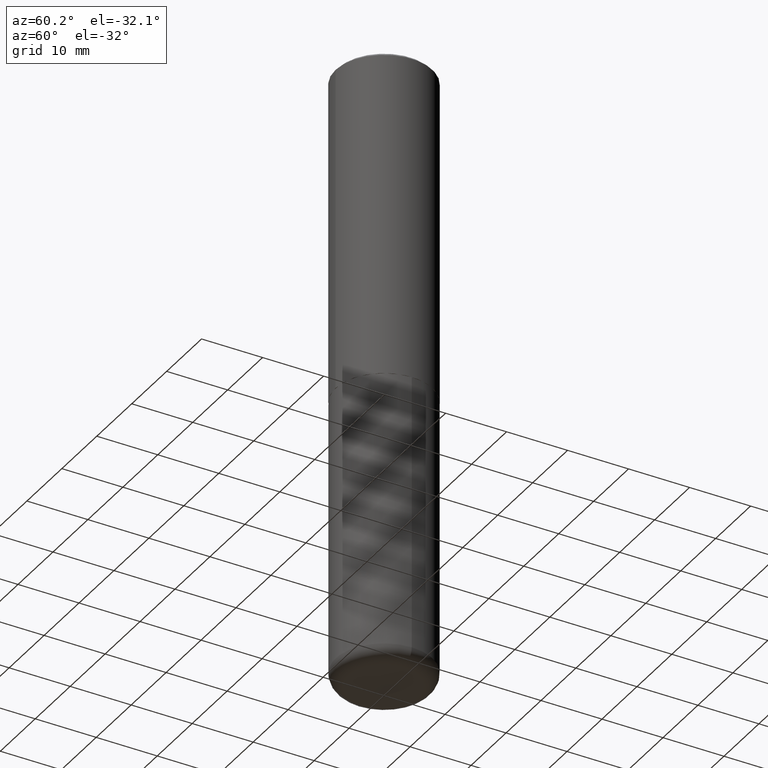
[diagram: clean part render]
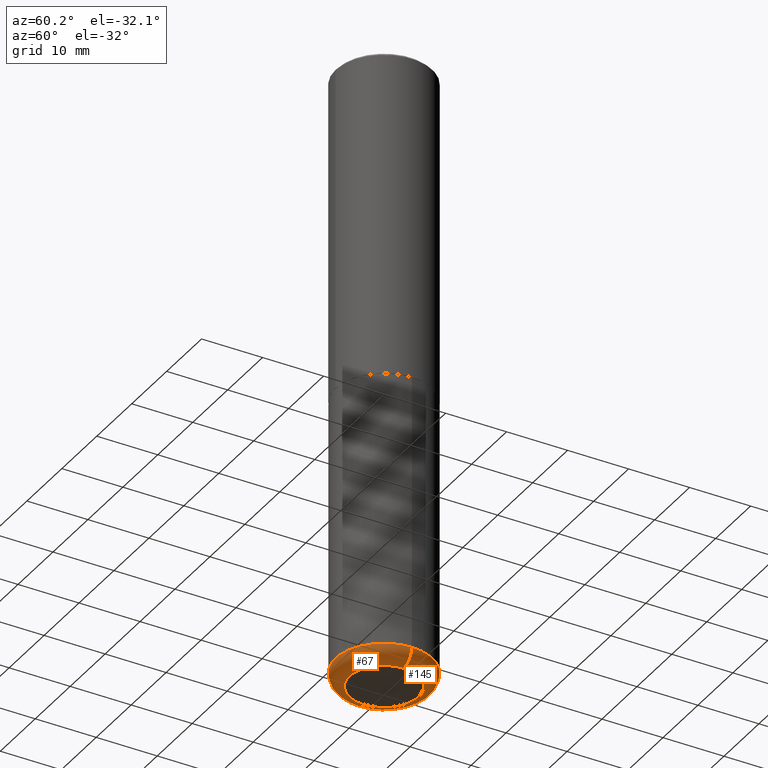
[diagram: same view with one multi-face feature highlighted, each face labeled with its STEP entity id]
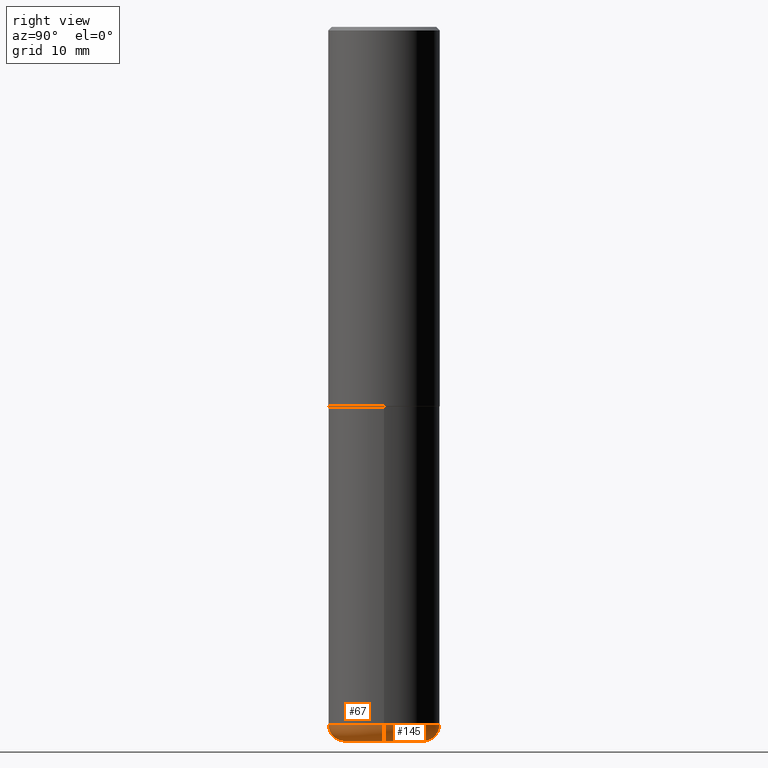
[diagram: same view with one multi-face feature highlighted, each face labeled with its STEP entity id]
A machine part, auxiliary view. The highlighted faces form ONE feature: a constant-radius fillet chain: 2 tangent blend faces with common blend radius 2.286 mm. The faces share edges in the B-rep.
A second angle (right view) of the same feature is appended — it is thin or edge-on in the first view.
Their STEP definitions:
[1] entity #67 (Torus):
#3 = EDGE_CURVE ( 'NONE', #340, #366, #215, .T. ) ;
#5 = ORIENTED_EDGE ( 'NONE', *, *, #312, .T. ) ;
#6 = CARTESIAN_POINT ( 'NONE',  ( -0.2225000000000000033, -1.190810687696637377E-14, -4.000000000000000000 ) ) ;
#11 = CARTESIAN_POINT ( 'NONE',  ( 0.2225000000000000033, -1.551963455115777730E-14, -4.000000000000000000 ) ) ;
#13 = DIRECTION ( 'NONE',  ( 1.000000000000000000, -6.982962677686273810E-15, 0.000000000000000000 ) ) ;
#14 = FACE_OUTER_BOUND ( 'NONE', #356, .T. ) ;
#21 = EDGE_CURVE ( 'NONE', #214, #342, #233, .T. ) ;
#37 = AXIS2_PLACEMENT_3D ( 'NONE', #86, #153, #50 ) ;
#41 = CARTESIAN_POINT ( 'NONE',  ( 9.781875224740546387E-29, -1.396592535537258233E-14, -4.000000000000000000 ) ) ;
#50 = DIRECTION ( 'NONE',  ( 1.000000000000000000, -6.982962677686264344E-15, 4.883557194083112340E-29 ) ) ;
#67 = ADVANCED_FACE ( 'NONE', ( #14 ), #262, .T. ) ;
#81 = CARTESIAN_POINT ( 'NONE',  ( -0.2225000000000000033, -1.207073444781047672E-14, -3.910000000000000142 ) ) ;
#86 = CARTESIAN_POINT ( 'NONE',  ( 9.561783032183883600E-29, -1.365169203487670064E-14, -3.910000000000000142 ) ) ;
#111 = DIRECTION ( 'NONE',  ( 1.000000000000000000, -6.982962677686269077E-15, 0.000000000000000000 ) ) ;
#117 = DIRECTION ( 'NONE',  ( 1.000000000000000000, -6.982962677686269077E-15, 0.000000000000000000 ) ) ;
#122 = AXIS2_PLACEMENT_3D ( 'NONE', #177, #266, #111 ) ;
#140 = DIRECTION ( 'NONE',  ( 7.105427357601001859E-15, 1.000000000000000000, -3.491481338843145583E-15 ) ) ;
#141 = AXIS2_PLACEMENT_3D ( 'NONE', #232, #169, #13 ) ;
#153 = DIRECTION ( 'NONE',  ( -2.445468806185136597E-29, 3.491481338843145583E-15, 1.000000000000000000 ) ) ;
#169 = DIRECTION ( 'NONE',  ( -6.982962677686266711E-15, -1.000000000000000000, 3.491481338843145583E-15 ) ) ;
#177 = CARTESIAN_POINT ( 'NONE',  ( 9.561783032183883600E-29, -1.365169203487670064E-14, -3.910000000000000142 ) ) ;
#184 = ORIENTED_EDGE ( 'NONE', *, *, #21, .F. ) ;
#214 = VERTEX_POINT ( 'NONE', #260 ) ;
#215 = CIRCLE ( 'NONE', #310, 0.2225000000000000033 ) ;
#232 = CARTESIAN_POINT ( 'NONE',  ( 0.2225000000000000033, -1.520540123066189404E-14, -3.910000000000000142 ) ) ;
#233 = CIRCLE ( 'NONE', #122, 0.3125000000000000000 ) ;
#260 = CARTESIAN_POINT ( 'NONE',  ( -0.3125000000000000000, -1.143124598562638756E-14, -3.910000000000000142 ) ) ;
#261 = DIRECTION ( 'NONE',  ( -1.000000000000000000, 7.105427357600996337E-15, 0.000000000000000000 ) ) ;
#262 = TOROIDAL_SURFACE ( 'NONE', #37, 0.2225000000000000033, 0.08999999999999992728 ) ;
#266 = DIRECTION ( 'NONE',  ( -2.445468806185136597E-29, 3.491481338843145583E-15, 1.000000000000000000 ) ) ;
#270 = CIRCLE ( 'NONE', #141, 0.08999999999999992728 ) ;
#295 = CIRCLE ( 'NONE', #393, 0.08999999999999992728 ) ;
#308 = DIRECTION ( 'NONE',  ( -2.445468806185136597E-29, 3.491481338843145583E-15, 1.000000000000000000 ) ) ;
#310 = AXIS2_PLACEMENT_3D ( 'NONE', #41, #308, #117 ) ;
#312 = EDGE_CURVE ( 'NONE', #366, #342, #270, .T. ) ;
#326 = ORIENTED_EDGE ( 'NONE', *, *, #358, .F. ) ;
#340 = VERTEX_POINT ( 'NONE', #6 ) ;
#342 = VERTEX_POINT ( 'NONE', #401 ) ;
#356 = EDGE_LOOP ( 'NONE', ( #326, #382, #5, #184 ) ) ;
#358 = EDGE_CURVE ( 'NONE', #340, #214, #295, .T. ) ;
#366 = VERTEX_POINT ( 'NONE', #11 ) ;
#382 = ORIENTED_EDGE ( 'NONE', *, *, #3, .T. ) ;
#393 = AXIS2_PLACEMENT_3D ( 'NONE', #81, #140, #261 ) ;
#401 = CARTESIAN_POINT ( 'NONE',  ( 0.3125000000000000000, -1.583386787165366057E-14, -3.910000000000000142 ) ) ;
[2] entity #145 (Torus):
#6 = CARTESIAN_POINT ( 'NONE',  ( -0.2225000000000000033, -1.190810687696637377E-14, -4.000000000000000000 ) ) ;
#11 = CARTESIAN_POINT ( 'NONE',  ( 0.2225000000000000033, -1.551963455115777730E-14, -4.000000000000000000 ) ) ;
#13 = DIRECTION ( 'NONE',  ( 1.000000000000000000, -6.982962677686273810E-15, 0.000000000000000000 ) ) ;
#25 = DIRECTION ( 'NONE',  ( 1.000000000000000000, -6.982962677686264344E-15, 4.883557194083112340E-29 ) ) ;
#54 = CARTESIAN_POINT ( 'NONE',  ( 9.781875224740546387E-29, -1.396592535537258233E-14, -4.000000000000000000 ) ) ;
#57 = DIRECTION ( 'NONE',  ( -2.445468806185136597E-29, 3.491481338843145583E-15, 1.000000000000000000 ) ) ;
#81 = CARTESIAN_POINT ( 'NONE',  ( -0.2225000000000000033, -1.207073444781047672E-14, -3.910000000000000142 ) ) ;
#88 = TOROIDAL_SURFACE ( 'NONE', #224, 0.2225000000000000033, 0.08999999999999992728 ) ;
#94 = ORIENTED_EDGE ( 'NONE', *, *, #413, .F. ) ;
#107 = ORIENTED_EDGE ( 'NONE', *, *, #358, .T. ) ;
#112 = DIRECTION ( 'NONE',  ( -2.445468806185136597E-29, 3.491481338843145583E-15, 1.000000000000000000 ) ) ;
#140 = DIRECTION ( 'NONE',  ( 7.105427357601001859E-15, 1.000000000000000000, -3.491481338843145583E-15 ) ) ;
#141 = AXIS2_PLACEMENT_3D ( 'NONE', #232, #169, #13 ) ;
#145 = ADVANCED_FACE ( 'NONE', ( #179 ), #88, .T. ) ;
#156 = AXIS2_PLACEMENT_3D ( 'NONE', #54, #57, #309 ) ;
#169 = DIRECTION ( 'NONE',  ( -6.982962677686266711E-15, -1.000000000000000000, 3.491481338843145583E-15 ) ) ;
#179 = FACE_OUTER_BOUND ( 'NONE', #272, .T. ) ;
#189 = EDGE_CURVE ( 'NONE', #366, #340, #314, .T. ) ;
#190 = ORIENTED_EDGE ( 'NONE', *, *, #312, .F. ) ;
#192 = CARTESIAN_POINT ( 'NONE',  ( 9.561783032183883600E-29, -1.365169203487670064E-14, -3.910000000000000142 ) ) ;
#214 = VERTEX_POINT ( 'NONE', #260 ) ;
#224 = AXIS2_PLACEMENT_3D ( 'NONE', #192, #388, #25 ) ;
#232 = CARTESIAN_POINT ( 'NONE',  ( 0.2225000000000000033, -1.520540123066189404E-14, -3.910000000000000142 ) ) ;
#260 = CARTESIAN_POINT ( 'NONE',  ( -0.3125000000000000000, -1.143124598562638756E-14, -3.910000000000000142 ) ) ;
#261 = DIRECTION ( 'NONE',  ( -1.000000000000000000, 7.105427357600996337E-15, 0.000000000000000000 ) ) ;
#270 = CIRCLE ( 'NONE', #141, 0.08999999999999992728 ) ;
#272 = EDGE_LOOP ( 'NONE', ( #335, #107, #94, #190 ) ) ;
#295 = CIRCLE ( 'NONE', #393, 0.08999999999999992728 ) ;
#297 = CARTESIAN_POINT ( 'NONE',  ( 9.561783032183883600E-29, -1.365169203487670064E-14, -3.910000000000000142 ) ) ;
#305 = AXIS2_PLACEMENT_3D ( 'NONE', #297, #112, #372 ) ;
#309 = DIRECTION ( 'NONE',  ( 1.000000000000000000, -6.982962677686269077E-15, 0.000000000000000000 ) ) ;
#312 = EDGE_CURVE ( 'NONE', #366, #342, #270, .T. ) ;
#314 = CIRCLE ( 'NONE', #156, 0.2225000000000000033 ) ;
#335 = ORIENTED_EDGE ( 'NONE', *, *, #189, .T. ) ;
#340 = VERTEX_POINT ( 'NONE', #6 ) ;
#342 = VERTEX_POINT ( 'NONE', #401 ) ;
#358 = EDGE_CURVE ( 'NONE', #340, #214, #295, .T. ) ;
#366 = VERTEX_POINT ( 'NONE', #11 ) ;
#371 = CIRCLE ( 'NONE', #305, 0.3125000000000000000 ) ;
#372 = DIRECTION ( 'NONE',  ( 1.000000000000000000, -6.982962677686269077E-15, 0.000000000000000000 ) ) ;
#388 = DIRECTION ( 'NONE',  ( -2.445468806185136597E-29, 3.491481338843145583E-15, 1.000000000000000000 ) ) ;
#393 = AXIS2_PLACEMENT_3D ( 'NONE', #81, #140, #261 ) ;
#401 = CARTESIAN_POINT ( 'NONE',  ( 0.3125000000000000000, -1.583386787165366057E-14, -3.910000000000000142 ) ) ;
#413 = EDGE_CURVE ( 'NONE', #342, #214, #371, .T. ) ;